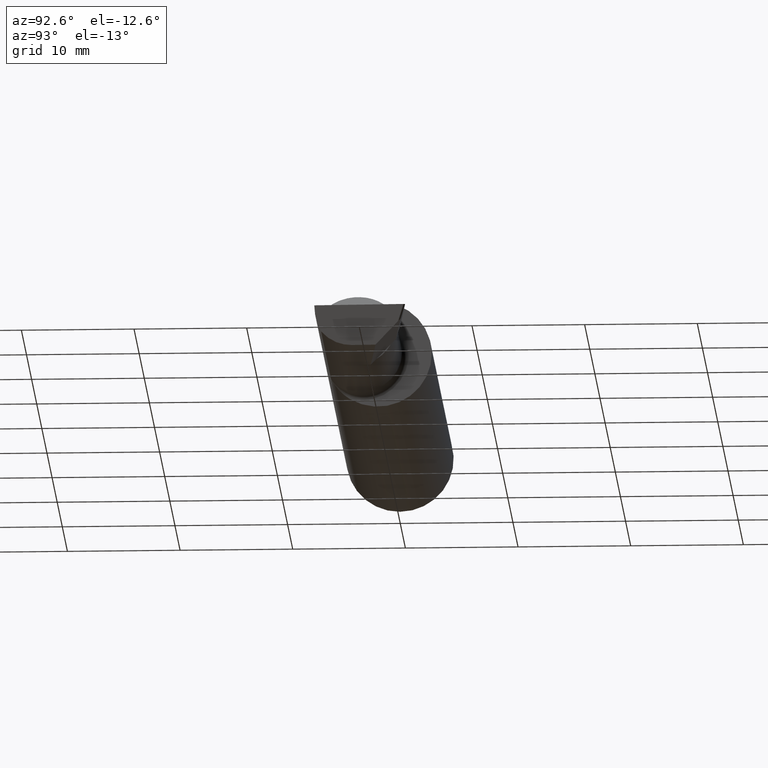
[diagram: clean part render]
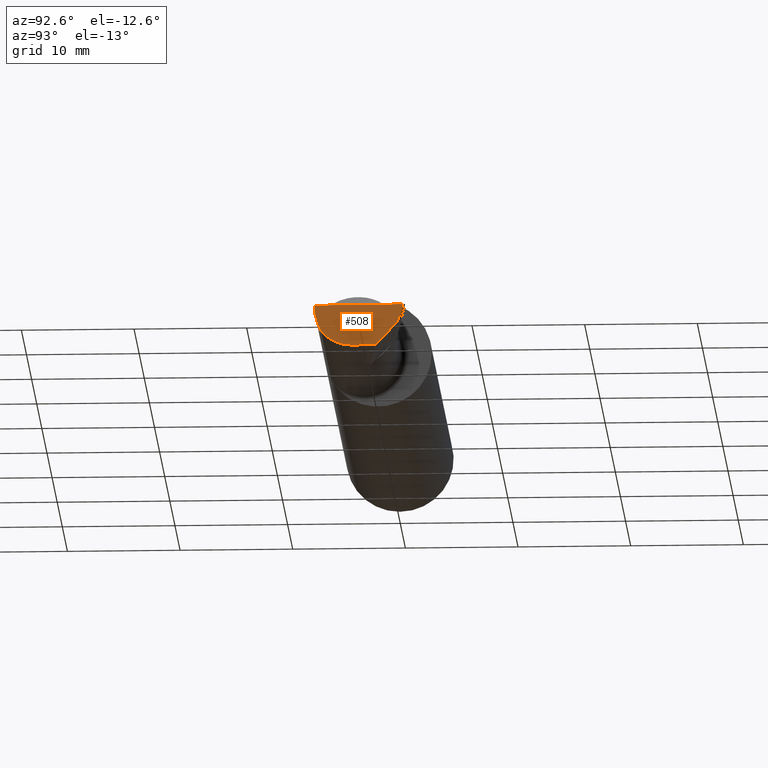
[diagram: same view with one face highlighted and labeled with its STEP entity id]
A machine part, auxiliary view. The second image highlights one B-rep face of the part: STEP entity #508.
In plain terms, the highlighted planar face has unit normal (-0.9922, 0.026, 0.1219).
Its self-contained STEP definition (entity closure, byte-faithful):
#11 = CARTESIAN_POINT ( 'NONE',  ( 2.487725449370724817, -0.1873500000000000443, -0.03213820089768506388 ) ) ;
#22 = VECTOR ( 'NONE', #338, 39.37007874015748854 ) ;
#71 = CARTESIAN_POINT ( 'NONE',  ( 2.490039159128059953, -0.2497391662021650194, 6.932588350567417155E-17 ) ) ;
#84 = VERTEX_POINT ( 'NONE', #630 ) ;
#86 = LINE ( 'NONE', #71, #156 ) ;
#99 = CARTESIAN_POINT ( 'NONE',  ( 2.491672876940991710, -0.1873499999999999888, 6.915950918908297591E-17 ) ) ;
#107 = LINE ( 'NONE', #121, #575 ) ;
#114 = CARTESIAN_POINT ( 'NONE',  ( 2.481080296960508580, -0.1635956445993030084, -0.09130436773856176469 ) ) ;
#119 = CARTESIAN_POINT ( 'NONE',  ( 2.493766568580444432, 0.1168246249203732934, -0.04780233936830599606 ) ) ;
#121 = CARTESIAN_POINT ( 'NONE',  ( 2.500086462864346881, 0.1239389743774740454, 0.002134693520102628507 ) ) ;
#122 = LINE ( 'NONE', #119, #22 ) ;
#124 = ORIENTED_EDGE ( 'NONE', *, *, #219, .F. ) ;
#145 =( BOUNDED_CURVE ( )  B_SPLINE_CURVE ( 3, ( #195, #265, #638, #624 ),
 .UNSPECIFIED., .F., .T. ) 
 B_SPLINE_CURVE_WITH_KNOTS ( ( 4, 4 ),
 ( 5.632580117768155148, 6.493234751459282528 ),
 .UNSPECIFIED. ) 
 CURVE ( )  GEOMETRIC_REPRESENTATION_ITEM ( )  RATIONAL_B_SPLINE_CURVE ( ( 1.000000000000000000, 0.9392195014330944058, 0.9392195014330944058, 1.000000000000000000 ) ) 
 REPRESENTATION_ITEM ( '' )  );
#156 = VECTOR ( 'NONE', #247, 39.37007874015748854 ) ;
#180 = EDGE_CURVE ( 'NONE', #613, #194, #122, .T. ) ;
#184 = CARTESIAN_POINT ( 'NONE',  ( 2.477873865042410806, -0.05739999999999999963, -0.1400500000000000633 ) ) ;
#194 = VERTEX_POINT ( 'NONE', #549 ) ;
#195 = CARTESIAN_POINT ( 'NONE',  ( 2.481080296960508580, -0.1635956445993030084, -0.09130436773856176469 ) ) ;
#198 = DIRECTION ( 'NONE',  ( 0.1219104985251942275, 0.000000000000000000, 0.9925410975618785825 ) ) ;
#202 = DIRECTION ( 'NONE',  ( -0.9922060308645608284, 0.02598182930461468559, 0.1218693434050591162 ) ) ;
#211 = DIRECTION ( 'NONE',  ( 0.1240019227988267553, 0.3022330132596590113, 0.9451342385281470415 ) ) ;
#212 = AXIS2_PLACEMENT_3D ( 'NONE', #688, #202, #198 ) ;
#217 = ORIENTED_EDGE ( 'NONE', *, *, #520, .T. ) ;
#219 = EDGE_CURVE ( 'NONE', #84, #518, #386, .T. ) ;
#224 = CARTESIAN_POINT ( 'NONE',  ( 2.491672876940991710, -0.1873499999999999888, 6.915950918908297591E-17 ) ) ;
#227 = CARTESIAN_POINT ( 'NONE',  ( 2.480058035321255794, 0.02601009779168077587, -0.1400500000000000633 ) ) ;
#247 = DIRECTION ( 'NONE',  ( 0.02617694830779364323, 0.9996573249755593693, -2.665804247635780349E-18 ) ) ;
#265 = CARTESIAN_POINT ( 'NONE',  ( 2.477925907309857401, -0.1365595166907235813, -0.1227499502647108609 ) ) ;
#288 = VECTOR ( 'NONE', #694, 39.37007874015748143 ) ;
#313 = LINE ( 'NONE', #479, #288 ) ;
#338 = DIRECTION ( 'NONE',  ( 0.1053106618240635256, 0.6976485211320200275, 0.7086580314005359593 ) ) ;
#357 = VERTEX_POINT ( 'NONE', #184 ) ;
#361 = EDGE_CURVE ( 'NONE', #518, #465, #86, .T. ) ;
#386 =( BOUNDED_CURVE ( )  B_SPLINE_CURVE ( 3, ( #114, #603, #11, #224 ),
 .UNSPECIFIED., .F., .T. ) 
 B_SPLINE_CURVE_WITH_KNOTS ( ( 4, 4 ),
 ( 0.8516985021657650368, 1.360746882515200484 ),
 .UNSPECIFIED. ) 
 CURVE ( )  GEOMETRIC_REPRESENTATION_ITEM ( )  RATIONAL_B_SPLINE_CURVE ( ( 1.000000000000000000, 0.9785221379938656705, 0.9785221379938656705, 1.000000000000000000 ) ) 
 REPRESENTATION_ITEM ( '' )  );
#414 = CARTESIAN_POINT ( 'NONE',  ( 2.499806390372749210, 0.1232563466314183787, 6.833120963331979760E-17 ) ) ;
#424 = FACE_OUTER_BOUND ( 'NONE', #672, .T. ) ;
#465 = VERTEX_POINT ( 'NONE', #414 ) ;
#472 = PLANE ( 'NONE',  #212 ) ;
#479 = CARTESIAN_POINT ( 'NONE',  ( 2.477889026591898247, -0.05682100378451882677, -0.1400500000000000633 ) ) ;
#482 = ORIENTED_EDGE ( 'NONE', *, *, #627, .T. ) ;
#508 = ADVANCED_FACE ( 'NONE', ( #424 ), #472, .F. ) ;
#518 = VERTEX_POINT ( 'NONE', #99 ) ;
#520 = EDGE_CURVE ( 'NONE', #84, #357, #145, .T. ) ;
#527 = EDGE_CURVE ( 'NONE', #613, #357, #313, .T. ) ;
#549 = CARTESIAN_POINT ( 'NONE',  ( 2.491786964307025176, 0.1037103972642544891, -0.06112352112763055206 ) ) ;
#575 = VECTOR ( 'NONE', #211, 39.37007874015748854 ) ;
#603 = CARTESIAN_POINT ( 'NONE',  ( 2.484117089522337452, -0.1792580844883771007, -0.06324101202936138755 ) ) ;
#604 = ORIENTED_EDGE ( 'NONE', *, *, #361, .F. ) ;
#613 = VERTEX_POINT ( 'NONE', #227 ) ;
#624 = CARTESIAN_POINT ( 'NONE',  ( 2.477873865042410806, -0.05739999999999999963, -0.1400500000000000633 ) ) ;
#627 = EDGE_CURVE ( 'NONE', #194, #465, #107, .T. ) ;
#630 = CARTESIAN_POINT ( 'NONE',  ( 2.481080296960508580, -0.1635956445993030084, -0.09130436773856176469 ) ) ;
#638 = CARTESIAN_POINT ( 'NONE',  ( 2.476787929832031221, -0.09887019258091186980, -0.1400500000000000356 ) ) ;
#661 = ORIENTED_EDGE ( 'NONE', *, *, #527, .F. ) ;
#672 = EDGE_LOOP ( 'NONE', ( #680, #482, #604, #124, #217, #661 ) ) ;
#680 = ORIENTED_EDGE ( 'NONE', *, *, #180, .T. ) ;
#688 = CARTESIAN_POINT ( 'NONE',  ( 2.475850273311264615, -0.1244607267090816621, -0.1422282308645907711 ) ) ;
#694 = DIRECTION ( 'NONE',  ( -0.02617694830779365364, -0.9996573249755593693, -8.535148296544462419E-17 ) ) ;